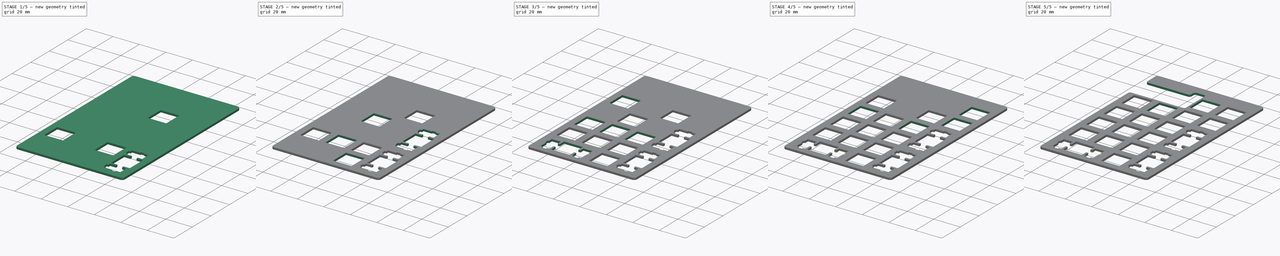
[diagram: build sequence overview — one tinted view per stage of 5, left to right]
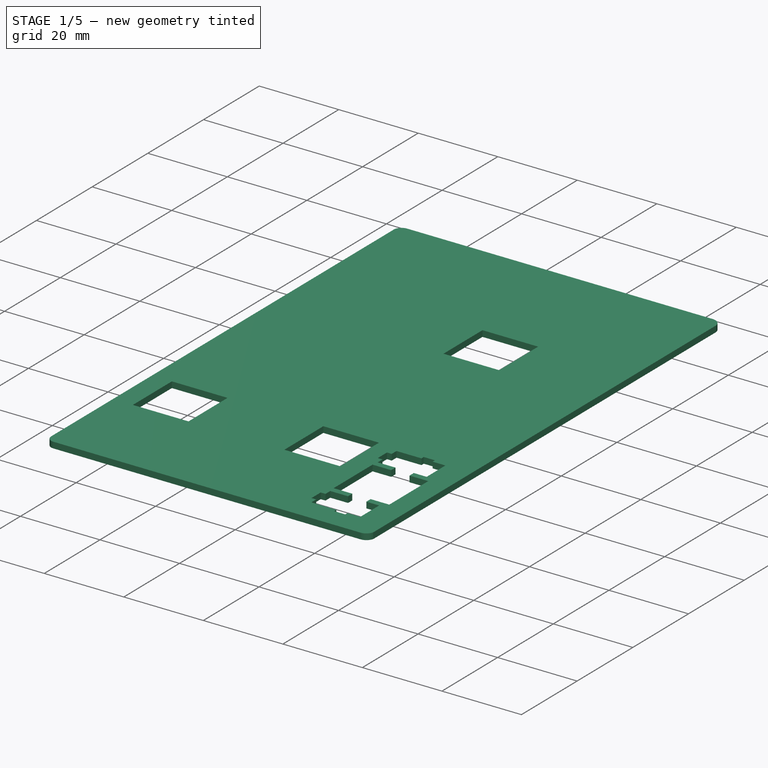
[diagram: stage 1 of 5 — iso view after this stage's code; geometry added in this stage tinted green]
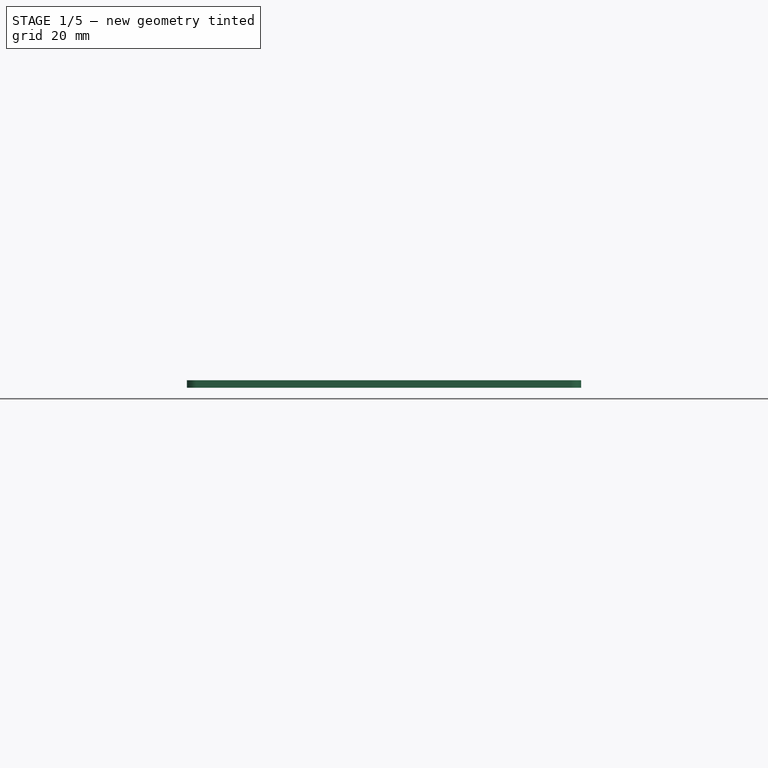
[diagram: stage 1 of 5 — front view after this stage's code; geometry added in this stage tinted green]
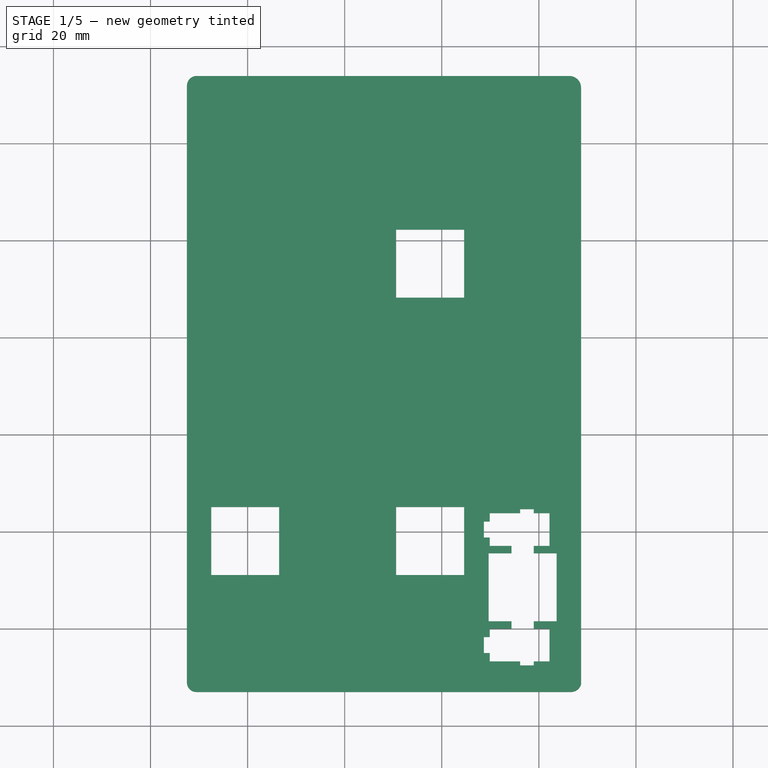
[diagram: stage 1 of 5 — top view after this stage's code; geometry added in this stage tinted green]
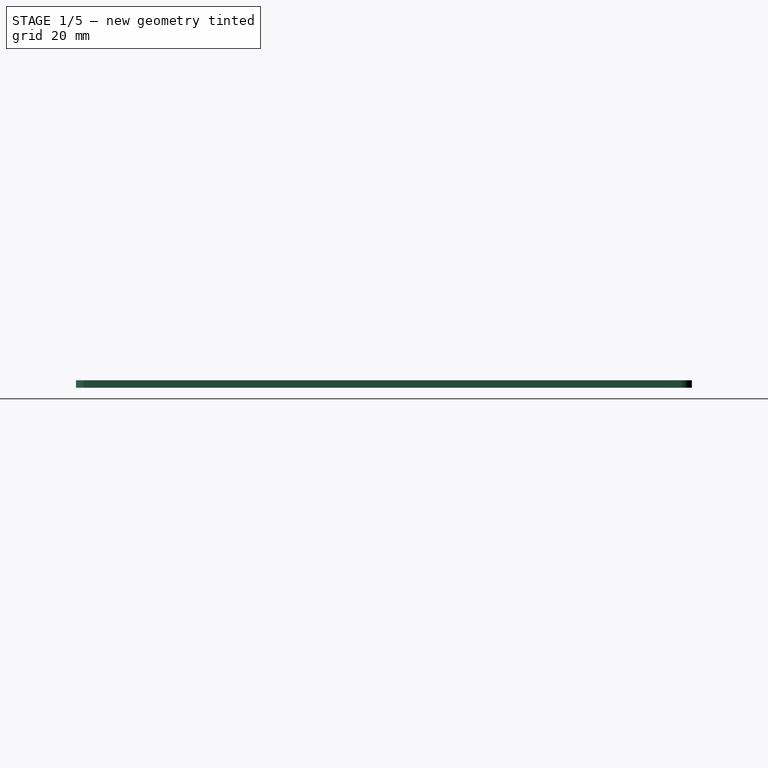
[diagram: stage 1 of 5 — right view after this stage's code; geometry added in this stage tinted green]
FCSTD DOCUMENT  (FreeCAD 0.18.4R)
Label: numPadPlate
License: All rights reserved
LicenseURL: http://en.wikipedia.org/wiki/All_rights_reserved
objects: Sketcher::SketchObject×25, Part::Feature×21, PartDesign::Pocket×21, App::Part×1, PartDesign::Pad×1, PartDesign::Fillet×1, PartDesign::Body×1
note: 92 computed .brp shape members not serialized (recipe doc carries the construction recipe); baked Part::Feature solids carry a one-line shape summary decoded from their .brp

FEATURE [Part::Feature] Wire008
  shape: bbox 14 x 14 x 2e-07 mm, 0 faces, 0 solids (baked)
FEATURE [Part::Feature] Wire003
  shape: bbox 14 x 14 x 2e-07 mm, 0 faces, 0 solids (baked)
FEATURE [Part::Feature] Wire
  shape: bbox 32.2 x 14.97 x 2e-07 mm, 0 faces, 0 solids (baked)
FEATURE [Part::Feature] Wire012
  shape: bbox 14 x 14 x 2e-07 mm, 0 faces, 0 solids (baked)
FEATURE [Part::Feature] Wire013
  shape: bbox 14 x 14 x 2e-07 mm, 0 faces, 0 solids (baked)
FEATURE [Part::Feature] Wire011
  shape: bbox 14 x 14 x 2e-07 mm, 0 faces, 0 solids (baked)
FEATURE [Part::Feature] Wire001
  shape: bbox 81.15 x 119.8 x 2e-07 mm, 0 faces, 0 solids (baked)
FEATURE [Part::Feature] Wire002
  shape: bbox 38.65 x 18.5 x 2e-07 mm, 0 faces, 0 solids (baked)
FEATURE [Part::Feature] Wire004
  shape: bbox 14 x 14 x 2e-07 mm, 0 faces, 0 solids (baked)
FEATURE [Part::Feature] Wire005
  Placement = pos=(19.05,19.05,0) rot=(0,0,1;0rad)
  shape: bbox 14 x 14 x 2e-07 mm, 0 faces, 0 solids (baked)
FEATURE [Part::Feature] Wire006
  shape: bbox 14 x 14 x 2e-07 mm, 0 faces, 0 solids (baked)
FEATURE [Part::Feature] Wire007
  shape: bbox 14 x 14 x 2e-07 mm, 0 faces, 0 solids (baked)
FEATURE [Part::Feature] Wire009
  shape: bbox 14 x 14 x 2e-07 mm, 0 faces, 0 solids (baked)
FEATURE [Part::Feature] Wire010
  shape: bbox 14.97 x 32.2 x 2e-07 mm, 0 faces, 0 solids (baked)
FEATURE [Part::Feature] Wire015
  shape: bbox 14 x 14 x 2e-07 mm, 0 faces, 0 solids (baked)
FEATURE [Part::Feature] Wire014
  shape: bbox 14 x 14 x 2e-07 mm, 0 faces, 0 solids (baked)
FEATURE [Part::Feature] Wire016
  shape: bbox 14 x 14 x 2e-07 mm, 0 faces, 0 solids (baked)
FEATURE [Part::Feature] Wire017
  shape: bbox 14.97 x 32.2 x 2e-07 mm, 0 faces, 0 solids (baked)
FEATURE [Part::Feature] Wire018
  shape: bbox 14 x 14 x 2e-07 mm, 0 faces, 0 solids (baked)
FEATURE [App::Part] Part
  Origin = -> Origin
FEATURE [Part::Feature] Wire020
  Placement = pos=(0,19.05,0) rot=(0,0,1;0rad)
  shape: bbox 14 x 14 x 2e-07 mm, 0 faces, 0 solids (baked)
FEATURE [Part::Feature] Wire019
  shape: bbox 14 x 14 x 2e-07 mm, 0 faces, 0 solids (baked)
FEATURE [Sketcher::SketchObject] Sketch001
  sketch-geometry (4):
    g0: LineSegment StartX=64.5996 StartY=26.0496 StartZ=0 EndX=64.5996 EndY=12.0502 EndZ=0
    g1: LineSegment StartX=64.5996 StartY=12.0502 StartZ=0 EndX=50.6003 EndY=12.0502 EndZ=0
    g2: LineSegment StartX=50.6003 StartY=12.0502 StartZ=0 EndX=50.6003 EndY=26.0496 EndZ=0
    g3: LineSegment StartX=50.6003 StartY=26.0496 StartZ=0 EndX=64.5996 EndY=26.0496 EndZ=0
  constraints (8):
    c: Vertical(g0)
    c: Coincident(g0,g1)
    c: Horizontal(g1)
    c: Coincident(g1,g2)
    c: Vertical(g2)
    c: Coincident(g2,g3)
    c: Horizontal(g3)
    c: Coincident(g3,g0)
FEATURE [Sketcher::SketchObject] Sketch002
  sketch-geometry (4):
    g0: LineSegment StartX=31.5503 StartY=83.201 StartZ=0 EndX=45.5496 EndY=83.201 EndZ=0
    g1: LineSegment StartX=45.5496 StartY=83.201 StartZ=0 EndX=45.5496 EndY=69.2003 EndZ=0
    g2: LineSegment StartX=45.5496 StartY=69.2003 StartZ=0 EndX=31.5503 EndY=69.2003 EndZ=0
    g3: LineSegment StartX=31.5503 StartY=69.2003 StartZ=0 EndX=31.5503 EndY=83.201 EndZ=0
  constraints (8):
    c: Horizontal(g0)
    c: Coincident(g0,g1)
    c: Vertical(g1)
    c: Coincident(g1,g2)
    c: Horizontal(g2)
    c: Coincident(g2,g3)
    c: Vertical(g3)
    c: Coincident(g3,g0)
FEATURE [Sketcher::SketchObject] Sketch003
  sketch-geometry (4):
    g0: LineSegment StartX=12.5002 StartY=102.25 StartZ=0 EndX=26.4998 EndY=102.25 EndZ=0
    g1: LineSegment StartX=26.4998 StartY=102.25 StartZ=0 EndX=26.4998 EndY=88.2503 EndZ=0
    g2: LineSegment StartX=26.4998 StartY=88.2503 StartZ=0 EndX=12.5002 EndY=88.2503 EndZ=0
    g3: LineSegment StartX=12.5002 StartY=88.2503 StartZ=0 EndX=12.5002 EndY=102.25 EndZ=0
  constraints (8):
    c: Horizontal(g0)
    c: Coincident(g0,g1)
    c: Vertical(g1)
    c: Coincident(g1,g2)
    c: Horizontal(g2)
    c: Coincident(g2,g3)
    c: Vertical(g3)
    c: Coincident(g3,g0)
FEATURE [Sketcher::SketchObject] Sketch004
  sketch-geometry (36):
    g0: LineSegment StartX=36.0247 StartY=26.0496 StartZ=0 EndX=22.0253 EndY=26.0496 EndZ=0
    g1: LineSegment StartX=22.0253 StartY=26.0496 StartZ=0 EndX=22.0253 EndY=21.3491 EndZ=0
    g2: LineSegment StartX=22.0253 StartY=21.3491 StartZ=0 EndX=20.4998 EndY=21.3491 EndZ=0
    g3: LineSegment StartX=20.4998 StartY=21.3491 StartZ=0 EndX=20.4998 EndY=24.5793 EndZ=0
    g4: LineSegment StartX=20.4998 StartY=24.5793 StartZ=0 EndX=13.7501 EndY=24.5793 EndZ=0
    g5: LineSegment StartX=13.7501 StartY=24.5793 StartZ=0 EndX=13.7501 EndY=21.3491 EndZ=0
    g6: LineSegment StartX=13.7501 StartY=21.3491 StartZ=0 EndX=12.9247 EndY=21.3491 EndZ=0
    g7: LineSegment StartX=12.9247 StartY=21.3491 StartZ=0 EndX=12.9247 EndY=18.5504 EndZ=0
    g8: LineSegment StartX=12.9247 StartY=18.5504 StartZ=0 EndX=13.7501 EndY=18.5504 EndZ=0
    g9: LineSegment StartX=13.7501 StartY=18.5504 StartZ=0 EndX=13.7501 EndY=12.2803 EndZ=0
    g10: LineSegment StartX=13.7501 StartY=12.2803 StartZ=0 EndX=15.4754 EndY=12.2803 EndZ=0
    g11: LineSegment StartX=15.4754 StartY=12.2803 StartZ=0 EndX=15.4754 EndY=11.08 EndZ=0
    g12: LineSegment StartX=15.4754 StartY=11.08 StartZ=0 EndX=18.7744 EndY=11.08 EndZ=0
    g13: LineSegment StartX=18.7744 StartY=11.08 StartZ=0 EndX=18.7744 EndY=12.2803 EndZ=0
    g14: LineSegment StartX=18.7744 StartY=12.2803 StartZ=0 EndX=20.4998 EndY=12.2803 EndZ=0
    g15: LineSegment StartX=20.4998 StartY=12.2803 StartZ=0 EndX=20.4998 EndY=16.7507 EndZ=0
    g16: LineSegment StartX=20.4998 StartY=16.7507 StartZ=0 EndX=22.0253 EndY=16.7507 EndZ=0
    g17: LineSegment StartX=22.0253 StartY=16.7507 StartZ=0 EndX=22.0253 EndY=12.0502 EndZ=0
    g18: LineSegment StartX=22.0253 StartY=12.0502 StartZ=0 EndX=36.0247 EndY=12.0502 EndZ=0
    g19: LineSegment StartX=36.0247 StartY=12.0502 StartZ=0 EndX=36.0247 EndY=16.7507 EndZ=0
    g20: LineSegment StartX=36.0247 StartY=16.7507 StartZ=0 EndX=37.5502 EndY=16.7507 EndZ=0
    g21: LineSegment StartX=37.5502 StartY=16.7507 StartZ=0 EndX=37.5502 EndY=12.2803 EndZ=0
    g22: LineSegment StartX=37.5502 StartY=12.2803 StartZ=0 EndX=39.2755 EndY=12.2803 EndZ=0
    g23: LineSegment StartX=39.2755 StartY=12.2803 StartZ=0 EndX=39.2755 EndY=11.08 EndZ=0
    g24: LineSegment StartX=39.2755 StartY=11.08 StartZ=0 EndX=42.5746 EndY=11.08 EndZ=0
    g25: LineSegment StartX=42.5746 StartY=11.08 StartZ=0 EndX=42.5746 EndY=12.2803 EndZ=0
    g26: LineSegment StartX=42.5746 StartY=12.2803 StartZ=0 EndX=44.2999 EndY=12.2803 EndZ=0
    g27: LineSegment StartX=44.2999 StartY=12.2803 StartZ=0 EndX=44.2999 EndY=18.5504 EndZ=0
    g28: LineSegment StartX=44.2999 StartY=18.5504 StartZ=0 EndX=45.1253 EndY=18.5504 EndZ=0
    g29: LineSegment StartX=45.1253 StartY=18.5504 StartZ=0 EndX=45.1253 EndY=21.3491 EndZ=0
    g30: LineSegment StartX=45.1253 StartY=21.3491 StartZ=0 EndX=44.2999 EndY=21.3491 EndZ=0
    g31: LineSegment StartX=44.2999 StartY=21.3491 StartZ=0 EndX=44.2999 EndY=24.5793 EndZ=0
    g32: LineSegment StartX=44.2999 StartY=24.5793 StartZ=0 EndX=37.5502 EndY=24.5793 EndZ=0
    g33: LineSegment StartX=37.5502 StartY=24.5793 StartZ=0 EndX=37.5502 EndY=21.3491 EndZ=0
    g34: LineSegment StartX=37.5502 StartY=21.3491 StartZ=0 EndX=36.0247 EndY=21.3491 EndZ=0
    g35: LineSegment StartX=36.0247 StartY=21.3491 StartZ=0 EndX=36.0247 EndY=26.0496 EndZ=0
  constraints (72):
    c: Horizontal(g0)
    c: Coincident(g0,g1)
    c: Vertical(g1)
    c: Coincident(g1,g2)
    c: Horizontal(g2)
    c: Coincident(g2,g3)
    c: Vertical(g3)
    c: Coincident(g3,g4)
    c: Horizontal(g4)
    c: Coincident(g4,g5)
    c: Vertical(g5)
    c: Coincident(g5,g6)
    c: Horizontal(g6)
    c: Coincident(g6,g7)
    c: Vertical(g7)
    c: Coincident(g7,g8)
    c: Horizontal(g8)
    c: Coincident(g8,g9)
    c: Vertical(g9)
    c: Coincident(g9,g10)
    c: Horizontal(g10)
    c: Coincident(g10,g11)
    c: Vertical(g11)
    c: Coincident(g11,g12)
    c: Horizontal(g12)
    c: Coincident(g12,g13)
    c: Vertical(g13)
    c: Coincident(g13,g14)
    c: Horizontal(g14)
    c: Coincident(g14,g15)
    c: Vertical(g15)
    c: Coincident(g15,g16)
    c: Horizontal(g16)
    c: Coincident(g16,g17)
    c: Vertical(g17)
    c: Coincident(g17,g18)
    c: Horizontal(g18)
    c: Coincident(g18,g19)
    c: Vertical(g19)
    c: Coincident(g19,g20)
    c: Horizontal(g20)
    c: Coincident(g20,g21)
    c: Vertical(g21)
    c: Coincident(g21,g22)
    c: Horizontal(g22)
    c: Coincident(g22,g23)
    c: Vertical(g23)
    c: Coincident(g23,g24)
    c: Horizontal(g24)
    c: Coincident(g24,g25)
    c: Vertical(g25)
    c: Coincident(g25,g26)
    c: Horizontal(g26)
    c: Coincident(g26,g27)
    c: Vertical(g27)
    c: Coincident(g27,g28)
    c: Horizontal(g28)
    c: Coincident(g28,g29)
    c: Vertical(g29)
    c: Coincident(g29,g30)
    c: Horizontal(g30)
    c: Coincident(g30,g31)
    c: Vertical(g31)
    c: Coincident(g31,g32)
    c: Horizontal(g32)
    c: Coincident(g32,g33)
    c: Vertical(g33)
    c: Coincident(g33,g34)
    c: Horizontal(g34)
    c: Coincident(g34,g35)
    c: Vertical(g35)
    c: Coincident(g35,g0)
FEATURE [Sketcher::SketchObject] Sketch005
  sketch-geometry (4):
    g0: LineSegment StartX=31.5503 StartY=64.151 StartZ=0 EndX=45.5496 EndY=64.151 EndZ=0
    g1: LineSegment StartX=45.5496 StartY=64.151 StartZ=0 EndX=45.5496 EndY=50.1504 EndZ=0
    g2: LineSegment StartX=45.5496 StartY=50.1504 StartZ=0 EndX=31.5503 EndY=50.1504 EndZ=0
    g3: LineSegment StartX=31.5503 StartY=50.1504 StartZ=0 EndX=31.5503 EndY=64.151 EndZ=0
  constraints (8):
    c: Horizontal(g0)
    c: Coincident(g0,g1)
    c: Vertical(g1)
    c: Coincident(g1,g2)
    c: Horizontal(g2)
    c: Coincident(g2,g3)
    c: Vertical(g3)
    c: Coincident(g3,g0)
FEATURE [Sketcher::SketchObject] Sketch006
  sketch-geometry (4):
    g0: LineSegment StartX=50.6003 StartY=64.151 StartZ=0 EndX=64.5996 EndY=64.151 EndZ=0
    g1: LineSegment StartX=64.5996 StartY=64.151 StartZ=0 EndX=64.5996 EndY=50.1504 EndZ=0
    g2: LineSegment StartX=64.5996 StartY=50.1504 StartZ=0 EndX=50.6003 EndY=50.1504 EndZ=0
    g3: LineSegment StartX=50.6003 StartY=50.1504 StartZ=0 EndX=50.6003 EndY=64.151 EndZ=0
  constraints (8):
    c: Horizontal(g0)
    c: Coincident(g0,g1)
    c: Vertical(g1)
    c: Coincident(g1,g2)
    c: Horizontal(g2)
    c: Coincident(g2,g3)
    c: Vertical(g3)
    c: Coincident(g3,g0)
FEATURE [Sketcher::SketchObject] Sketch007
  sketch-geometry (4):
    g0: LineSegment StartX=12.5002 StartY=64.151 StartZ=0 EndX=26.4998 EndY=64.151 EndZ=0
    g1: LineSegment StartX=26.4998 StartY=64.151 StartZ=0 EndX=26.4998 EndY=50.1504 EndZ=0
    g2: LineSegment StartX=26.4998 StartY=50.1504 StartZ=0 EndX=12.5002 EndY=50.1504 EndZ=0
    g3: LineSegment StartX=12.5002 StartY=50.1504 StartZ=0 EndX=12.5002 EndY=64.151 EndZ=0
  constraints (8):
    c: Horizontal(g0)
    c: Coincident(g0,g1)
    c: Vertical(g1)
    c: Coincident(g1,g2)
    c: Horizontal(g2)
    c: Coincident(g2,g3)
    c: Vertical(g3)
    c: Coincident(g3,g0)
FEATURE [Sketcher::SketchObject] Sketch008  label="outer"
  sketch-geometry (8):
    g0: ArcOfCircle CenterX=9.43113 CenterY=8.93113 CenterZ=0 NormalX=0 NormalY=0 NormalZ=1 AngleXU=0 Radius=1.93236 StartAngle=3.10595 EndAngle=4.74803
    g1: LineSegment StartX=9.5 StartY=7 StartZ=0 EndX=86.65 EndY=7 EndZ=0
    g2: ArcOfCircle CenterX=86.65 CenterY=9.10215 CenterZ=0 NormalX=0 NormalY=0 NormalZ=1 AngleXU=0 Radius=2.10215 StartAngle=4.71239 EndAngle=6.04596
    g3: LineSegment StartX=88.6933 StartY=8.60814 StartZ=0 EndX=88.6933 EndY=131.518 EndZ=0
    g4: ArcOfCircle CenterX=86.3014 CenterY=131.518 CenterZ=0 NormalX=0 NormalY=0 NormalZ=1 AngleXU=0 Radius=2.39186 StartAngle=7.6e-15 EndAngle=1.5708
    g5: LineSegment StartX=86.3014 StartY=133.91 StartZ=0 EndX=9.73202 EndY=133.91 EndZ=0
    g6: ArcOfCircle CenterX=9.51206 CenterY=131.91 CenterZ=0 NormalX=0 NormalY=0 NormalZ=1 AngleXU=0 Radius=2.01206 StartAngle=1.46125 EndAngle=3.14159
    g7: LineSegment StartX=7.5 StartY=131.91 StartZ=0 EndX=7.5 EndY=9 EndZ=0
  constraints (24):
    c: Coincident(g0,g1)
    c: Horizontal(g1)
    c: Coincident(g1,g2)
    c: Coincident(g2,g3)
    c: Vertical(g3)
    c: Coincident(g3,g4)
    c: Coincident(g4,g5)
    c: Horizontal(g5)
    c: Coincident(g5,g6)
    c: Coincident(g6,g7)
    c: Vertical(g7)
    c: Coincident(g7,g0)
    c: DistanceX(g0) = 9.5
    c: DistanceY(g0) = 7
    c: DistanceX(g0) = 7.5
    c: DistanceY(g0) = 9
    c: Equal(g7,g3)
    c: DistanceY(g6,g6) = 0
    c: Distance(g7) = 122.91  'totalHeight -4mm'
    c: Distance(g1) = 77.15
    c: DistanceX(g1,g2) = 0
    c: DistanceY(g6,g5) = 2
    c: DistanceX(g4,g4) = 0
    c: DistanceY(g4,g3) = 0
FEATURE [Sketcher::SketchObject] Sketch009  label="arduino"
  sketch-geometry (5):
    g0: GeomPoint X=5.74275 Y=122.036 Z=0
    g1: LineSegment StartX=5.73795 StartY=122.037 StartZ=0 EndX=49.1508 EndY=122.037 EndZ=0
    g2: LineSegment StartX=49.1508 StartY=122.037 StartZ=0 EndX=49.1508 EndY=104.25 EndZ=0
    g3: LineSegment StartX=49.1508 StartY=104.25 StartZ=0 EndX=5.73795 EndY=104.25 EndZ=0
    g4: LineSegment StartX=5.73795 StartY=104.25 StartZ=0 EndX=5.73795 EndY=122.037 EndZ=0
  constraints (8):
    c: Coincident(g1,g2)
    c: Coincident(g2,g3)
    c: Coincident(g3,g4)
    c: Coincident(g4,g1)
    c: Horizontal(g1)
    c: Horizontal(g3)
    c: Vertical(g2)
    c: Vertical(g4)
FEATURE [Sketcher::SketchObject] Sketch010
  sketch-geometry (4):
    g0: LineSegment StartX=31.5503 StartY=102.25 StartZ=0 EndX=45.5496 EndY=102.25 EndZ=0
    g1: LineSegment StartX=45.5496 StartY=102.25 StartZ=0 EndX=45.5496 EndY=88.2503 EndZ=0
    g2: LineSegment StartX=45.5496 StartY=88.2503 StartZ=0 EndX=31.5503 EndY=88.2503 EndZ=0
    g3: LineSegment StartX=31.5503 StartY=88.2503 StartZ=0 EndX=31.5503 EndY=102.25 EndZ=0
  constraints (8):
    c: Horizontal(g0)
    c: Coincident(g0,g1)
    c: Vertical(g1)
    c: Coincident(g1,g2)
    c: Horizontal(g2)
    c: Coincident(g2,g3)
    c: Vertical(g3)
    c: Coincident(g3,g0)
FEATURE [Sketcher::SketchObject] Sketch011
  sketch-geometry (4):
    g0: LineSegment StartX=83.6496 StartY=121.3 StartZ=0 EndX=83.6496 EndY=107.3 EndZ=0
    g1: LineSegment StartX=83.6496 StartY=107.3 StartZ=0 EndX=69.6503 EndY=107.3 EndZ=0
    g2: LineSegment StartX=69.6503 StartY=107.3 StartZ=0 EndX=69.6503 EndY=121.3 EndZ=0
    g3: LineSegment StartX=69.6503 StartY=121.3 StartZ=0 EndX=83.6496 EndY=121.3 EndZ=0
  constraints (8):
    c: Vertical(g0)
    c: Coincident(g0,g1)
    c: Horizontal(g1)
    c: Coincident(g1,g2)
    c: Vertical(g2)
    c: Coincident(g2,g3)
    c: Horizontal(g3)
    c: Coincident(g3,g0)
FEATURE [Sketcher::SketchObject] Sketch012
  sketch-geometry (4):
    g0: LineSegment StartX=69.6503 StartY=102.25 StartZ=0 EndX=83.6496 EndY=102.25 EndZ=0
    g1: LineSegment StartX=83.6496 StartY=102.25 StartZ=0 EndX=83.6496 EndY=88.2503 EndZ=0
    g2: LineSegment StartX=83.6496 StartY=88.2503 StartZ=0 EndX=69.6503 EndY=88.2503 EndZ=0
    g3: LineSegment StartX=69.6503 StartY=88.2503 StartZ=0 EndX=69.6503 EndY=102.25 EndZ=0
  constraints (8):
    c: Horizontal(g0)
    c: Coincident(g0,g1)
    c: Vertical(g1)
    c: Coincident(g1,g2)
    c: Horizontal(g2)
    c: Coincident(g2,g3)
    c: Vertical(g3)
    c: Coincident(g3,g0)
FEATURE [Sketcher::SketchObject] Sketch013
  sketch-geometry (4):
    g0: LineSegment StartX=12.5002 StartY=83.201 StartZ=0 EndX=26.4998 EndY=83.201 EndZ=0
    g1: LineSegment StartX=26.4998 StartY=83.201 StartZ=0 EndX=26.4998 EndY=69.2003 EndZ=0
    g2: LineSegment StartX=26.4998 StartY=69.2003 StartZ=0 EndX=12.5002 EndY=69.2003 EndZ=0
    g3: LineSegment StartX=12.5002 StartY=69.2003 StartZ=0 EndX=12.5002 EndY=83.201 EndZ=0
  constraints (8):
    c: Horizontal(g0)
    c: Coincident(g0,g1)
    c: Vertical(g1)
    c: Coincident(g1,g2)
    c: Horizontal(g2)
    c: Coincident(g2,g3)
    c: Vertical(g3)
    c: Coincident(g3,g0)
FEATURE [Sketcher::SketchObject] Sketch014
  sketch-geometry (4):
    g0: LineSegment StartX=50.6003 StartY=83.201 StartZ=0 EndX=64.5996 EndY=83.201 EndZ=0
    g1: LineSegment StartX=64.5996 StartY=83.201 StartZ=0 EndX=64.5996 EndY=69.2003 EndZ=0
    g2: LineSegment StartX=64.5996 StartY=69.2003 StartZ=0 EndX=50.6003 EndY=69.2003 EndZ=0
    g3: LineSegment StartX=50.6003 StartY=69.2003 StartZ=0 EndX=50.6003 EndY=83.201 EndZ=0
  constraints (8):
    c: Horizontal(g0)
    c: Coincident(g0,g1)
    c: Vertical(g1)
    c: Coincident(g1,g2)
    c: Horizontal(g2)
    c: Coincident(g2,g3)
    c: Vertical(g3)
    c: Coincident(g3,g0)
FEATURE [Sketcher::SketchObject] Sketch015
  sketch-geometry (36):
    g0: LineSegment StartX=76.1506 StartY=82.7752 StartZ=0 EndX=76.1506 EndY=81.9511 EndZ=0
    g1: LineSegment StartX=76.1506 StartY=81.9511 StartZ=0 EndX=69.8803 EndY=81.9511 EndZ=0
    g2: LineSegment StartX=69.8803 StartY=81.9511 StartZ=0 EndX=69.8803 EndY=80.2261 EndZ=0
    g3: LineSegment StartX=69.8803 StartY=80.2261 StartZ=0 EndX=68.6802 EndY=80.2261 EndZ=0
    g4: LineSegment StartX=68.6802 StartY=80.2261 StartZ=0 EndX=68.6802 EndY=76.9254 EndZ=0
    g5: LineSegment StartX=68.6802 StartY=76.9254 StartZ=0 EndX=69.8803 EndY=76.9254 EndZ=0
    g6: LineSegment StartX=69.8803 StartY=76.9254 StartZ=0 EndX=69.8803 EndY=75.2 EndZ=0
    g7: LineSegment StartX=69.8803 StartY=75.2 StartZ=0 EndX=74.3507 EndY=75.2 EndZ=0
    g8: LineSegment StartX=74.3507 StartY=75.2 StartZ=0 EndX=74.3507 EndY=73.676 EndZ=0
    g9: LineSegment StartX=74.3507 StartY=73.676 StartZ=0 EndX=69.6503 EndY=73.676 EndZ=0
    g10: LineSegment StartX=69.6503 StartY=73.676 StartZ=0 EndX=69.6503 EndY=59.6753 EndZ=0
    g11: LineSegment StartX=69.6503 StartY=59.6753 StartZ=0 EndX=74.3507 EndY=59.6753 EndZ=0
    g12: LineSegment StartX=74.3507 StartY=59.6753 StartZ=0 EndX=74.3507 EndY=58.1509 EndZ=0
    g13: LineSegment StartX=74.3507 StartY=58.1509 StartZ=0 EndX=69.8803 EndY=58.1509 EndZ=0
    g14: LineSegment StartX=69.8803 StartY=58.1509 StartZ=0 EndX=69.8803 EndY=56.4258 EndZ=0
    g15: LineSegment StartX=69.8803 StartY=56.4258 StartZ=0 EndX=68.6802 EndY=56.4258 EndZ=0
    g16: LineSegment StartX=68.6802 StartY=56.4258 StartZ=0 EndX=68.6802 EndY=53.1252 EndZ=0
    g17: LineSegment StartX=68.6802 StartY=53.1252 StartZ=0 EndX=69.8803 EndY=53.1252 EndZ=0
    g18: LineSegment StartX=69.8803 StartY=53.1252 StartZ=0 EndX=69.8803 EndY=51.4016 EndZ=0
    g19: LineSegment StartX=69.8803 StartY=51.4016 StartZ=0 EndX=76.1506 EndY=51.4016 EndZ=0
    g20: LineSegment StartX=76.1506 StartY=51.4016 StartZ=0 EndX=76.1506 EndY=50.5761 EndZ=0
    g21: LineSegment StartX=76.1506 StartY=50.5761 StartZ=0 EndX=78.9506 EndY=50.5761 EndZ=0
    g22: LineSegment StartX=78.9506 StartY=50.5761 StartZ=0 EndX=78.9506 EndY=51.4016 EndZ=0
    g23: LineSegment StartX=78.9506 StartY=51.4016 StartZ=0 EndX=82.1806 EndY=51.4016 EndZ=0
    g24: LineSegment StartX=82.1806 StartY=51.4016 StartZ=0 EndX=82.1806 EndY=58.1509 EndZ=0
    g25: LineSegment StartX=82.1806 StartY=58.1509 StartZ=0 EndX=78.9506 EndY=58.1509 EndZ=0
    g26: LineSegment StartX=78.9506 StartY=58.1509 StartZ=0 EndX=78.9506 EndY=59.6753 EndZ=0
    g27: LineSegment StartX=78.9506 StartY=59.6753 StartZ=0 EndX=83.6496 EndY=59.6753 EndZ=0
    g28: LineSegment StartX=83.6496 StartY=59.6753 StartZ=0 EndX=83.6496 EndY=73.676 EndZ=0
    g29: LineSegment StartX=83.6496 StartY=73.676 StartZ=0 EndX=78.9506 EndY=73.676 EndZ=0
    g30: LineSegment StartX=78.9506 StartY=73.676 StartZ=0 EndX=78.9506 EndY=75.2 EndZ=0
    g31: LineSegment StartX=78.9506 StartY=75.2 StartZ=0 EndX=82.1806 EndY=75.2 EndZ=0
    g32: LineSegment StartX=82.1806 StartY=75.2 StartZ=0 EndX=82.1806 EndY=81.9511 EndZ=0
    g33: LineSegment StartX=82.1806 StartY=81.9511 StartZ=0 EndX=78.9506 EndY=81.9511 EndZ=0
    g34: LineSegment StartX=78.9506 StartY=81.9511 StartZ=0 EndX=78.9506 EndY=82.7752 EndZ=0
    g35: LineSegment StartX=78.9506 StartY=82.7752 StartZ=0 EndX=76.1506 EndY=82.7752 EndZ=0
  constraints (72):
    c: Vertical(g0)
    c: Coincident(g0,g1)
    c: Horizontal(g1)
    c: Coincident(g1,g2)
    c: Vertical(g2)
    c: Coincident(g2,g3)
    c: Horizontal(g3)
    c: Coincident(g3,g4)
    c: Vertical(g4)
    c: Coincident(g4,g5)
    c: Horizontal(g5)
    c: Coincident(g5,g6)
    c: Vertical(g6)
    c: Coincident(g6,g7)
    c: Horizontal(g7)
    c: Coincident(g7,g8)
    c: Vertical(g8)
    c: Coincident(g8,g9)
    c: Horizontal(g9)
    c: Coincident(g9,g10)
    c: Vertical(g10)
    c: Coincident(g10,g11)
    c: Horizontal(g11)
    c: Coincident(g11,g12)
    c: Vertical(g12)
    c: Coincident(g12,g13)
    c: Horizontal(g13)
    c: Coincident(g13,g14)
    c: Vertical(g14)
    c: Coincident(g14,g15)
    c: Horizontal(g15)
    c: Coincident(g15,g16)
    c: Vertical(g16)
    c: Coincident(g16,g17)
    c: Horizontal(g17)
    c: Coincident(g17,g18)
    c: Vertical(g18)
    c: Coincident(g18,g19)
    c: Horizontal(g19)
    c: Coincident(g19,g20)
    c: Vertical(g20)
    c: Coincident(g20,g21)
    c: Horizontal(g21)
    c: Coincident(g21,g22)
    c: Vertical(g22)
    c: Coincident(g22,g23)
    c: Horizontal(g23)
    c: Coincident(g23,g24)
    c: Vertical(g24)
    c: Coincident(g24,g25)
    c: Horizontal(g25)
    c: Coincident(g25,g26)
    c: Vertical(g26)
    c: Coincident(g26,g27)
    c: Horizontal(g27)
    c: Coincident(g27,g28)
    c: Vertical(g28)
    c: Coincident(g28,g29)
    c: Horizontal(g29)
    c: Coincident(g29,g30)
    c: Vertical(g30)
    c: Coincident(g30,g31)
    c: Horizontal(g31)
    c: Coincident(g31,g32)
    c: Vertical(g32)
    c: Coincident(g32,g33)
    c: Horizontal(g33)
    c: Coincident(g33,g34)
    c: Vertical(g34)
    c: Coincident(g34,g35)
    c: Horizontal(g35)
    c: Coincident(g35,g0)
FEATURE [Sketcher::SketchObject] Sketch016
  sketch-geometry (4):
    g0: LineSegment StartX=31.5503 StartY=45.0995 StartZ=0 EndX=45.5496 EndY=45.0995 EndZ=0
    g1: LineSegment StartX=45.5496 StartY=45.0995 StartZ=0 EndX=45.5496 EndY=31.1001 EndZ=0
    g2: LineSegment StartX=45.5496 StartY=31.1001 StartZ=0 EndX=31.5503 EndY=31.1001 EndZ=0
    g3: LineSegment StartX=31.5503 StartY=31.1001 StartZ=0 EndX=31.5503 EndY=45.0995 EndZ=0
  constraints (8):
    c: Horizontal(g0)
    c: Coincident(g0,g1)
    c: Vertical(g1)
    c: Coincident(g1,g2)
    c: Horizontal(g2)
    c: Coincident(g2,g3)
    c: Vertical(g3)
    c: Coincident(g3,g0)
FEATURE [Sketcher::SketchObject] Sketch017
  sketch-geometry (4):
    g0: LineSegment StartX=12.5002 StartY=45.0995 StartZ=0 EndX=26.4998 EndY=45.0995 EndZ=0
    g1: LineSegment StartX=26.4998 StartY=45.0995 StartZ=0 EndX=26.4998 EndY=31.1001 EndZ=0
    g2: LineSegment StartX=26.4998 StartY=31.1001 StartZ=0 EndX=12.5002 EndY=31.1001 EndZ=0
    g3: LineSegment StartX=12.5002 StartY=31.1001 StartZ=0 EndX=12.5002 EndY=45.0995 EndZ=0
  constraints (8):
    c: Horizontal(g0)
    c: Coincident(g0,g1)
    c: Vertical(g1)
    c: Coincident(g1,g2)
    c: Horizontal(g2)
    c: Coincident(g2,g3)
    c: Vertical(g3)
    c: Coincident(g3,g0)
FEATURE [Sketcher::SketchObject] Sketch018
  sketch-geometry (4):
    g0: LineSegment StartX=50.6003 StartY=45.0995 StartZ=0 EndX=64.5996 EndY=45.0995 EndZ=0
    g1: LineSegment StartX=64.5996 StartY=45.0995 StartZ=0 EndX=64.5996 EndY=31.1001 EndZ=0
    g2: LineSegment StartX=64.5996 StartY=31.1001 StartZ=0 EndX=50.6003 EndY=31.1001 EndZ=0
    g3: LineSegment StartX=50.6003 StartY=31.1001 StartZ=0 EndX=50.6003 EndY=45.0995 EndZ=0
  constraints (8):
    c: Horizontal(g0)
    c: Coincident(g0,g1)
    c: Vertical(g1)
    c: Coincident(g1,g2)
    c: Horizontal(g2)
    c: Coincident(g2,g3)
    c: Vertical(g3)
    c: Coincident(g3,g0)
FEATURE [Sketcher::SketchObject] Sketch019
  sketch-geometry (36):
    g0: LineSegment StartX=76.1506 StartY=43.8499 StartZ=0 EndX=69.8803 EndY=43.8499 EndZ=0
    g1: LineSegment StartX=69.8803 StartY=43.8499 StartZ=0 EndX=69.8803 EndY=42.1245 EndZ=0
    g2: LineSegment StartX=69.8803 StartY=42.1245 StartZ=0 EndX=68.6802 EndY=42.1245 EndZ=0
    g3: LineSegment StartX=68.6802 StartY=42.1245 StartZ=0 EndX=68.6802 EndY=38.8254 EndZ=0
    g4: LineSegment StartX=68.6802 StartY=38.8254 StartZ=0 EndX=69.8803 EndY=38.8254 EndZ=0
    g5: LineSegment StartX=69.8803 StartY=38.8254 StartZ=0 EndX=69.8803 EndY=37.1001 EndZ=0
    g6: LineSegment StartX=69.8803 StartY=37.1001 StartZ=0 EndX=74.3507 EndY=37.1001 EndZ=0
    g7: LineSegment StartX=74.3507 StartY=37.1001 StartZ=0 EndX=74.3507 EndY=35.5746 EndZ=0
    g8: LineSegment StartX=74.3507 StartY=35.5746 StartZ=0 EndX=69.6503 EndY=35.5746 EndZ=0
    g9: LineSegment StartX=69.6503 StartY=35.5746 StartZ=0 EndX=69.6503 EndY=21.5751 EndZ=0
    g10: LineSegment StartX=69.6503 StartY=21.5751 StartZ=0 EndX=74.3507 EndY=21.5751 EndZ=0
    g11: LineSegment StartX=74.3507 StartY=21.5751 StartZ=0 EndX=74.3507 EndY=20.0496 EndZ=0
    g12: LineSegment StartX=74.3507 StartY=20.0496 StartZ=0 EndX=69.8803 EndY=20.0496 EndZ=0
    g13: LineSegment StartX=69.8803 StartY=20.0496 StartZ=0 EndX=69.8803 EndY=18.3244 EndZ=0
    g14: LineSegment StartX=69.8803 StartY=18.3244 StartZ=0 EndX=68.6802 EndY=18.3244 EndZ=0
    g15: LineSegment StartX=68.6802 StartY=18.3244 StartZ=0 EndX=68.6802 EndY=15.0254 EndZ=0
    g16: LineSegment StartX=68.6802 StartY=15.0254 StartZ=0 EndX=69.8803 EndY=15.0254 EndZ=0
    g17: LineSegment StartX=69.8803 StartY=15.0254 StartZ=0 EndX=69.8803 EndY=13.3001 EndZ=0
    g18: LineSegment StartX=69.8803 StartY=13.3001 StartZ=0 EndX=76.1506 EndY=13.3001 EndZ=0
    g19: LineSegment StartX=76.1506 StartY=13.3001 StartZ=0 EndX=76.1506 EndY=12.4746 EndZ=0
    g20: LineSegment StartX=76.1506 StartY=12.4746 StartZ=0 EndX=78.9506 EndY=12.4746 EndZ=0
    g21: LineSegment StartX=78.9506 StartY=12.4746 StartZ=0 EndX=78.9506 EndY=13.3001 EndZ=0
    g22: LineSegment StartX=78.9506 StartY=13.3001 StartZ=0 EndX=82.1806 EndY=13.3001 EndZ=0
    g23: LineSegment StartX=82.1806 StartY=13.3001 StartZ=0 EndX=82.1806 EndY=20.0496 EndZ=0
    g24: LineSegment StartX=82.1806 StartY=20.0496 StartZ=0 EndX=78.9506 EndY=20.0496 EndZ=0
    g25: LineSegment StartX=78.9506 StartY=20.0496 StartZ=0 EndX=78.9506 EndY=21.5751 EndZ=0
    g26: LineSegment StartX=78.9506 StartY=21.5751 StartZ=0 EndX=83.6496 EndY=21.5751 EndZ=0
    g27: LineSegment StartX=83.6496 StartY=21.5751 StartZ=0 EndX=83.6496 EndY=35.5746 EndZ=0
    g28: LineSegment StartX=83.6496 StartY=35.5746 StartZ=0 EndX=78.9506 EndY=35.5746 EndZ=0
    g29: LineSegment StartX=78.9506 StartY=35.5746 StartZ=0 EndX=78.9506 EndY=37.1001 EndZ=0
    g30: LineSegment StartX=78.9506 StartY=37.1001 StartZ=0 EndX=82.1806 EndY=37.1001 EndZ=0
    g31: LineSegment StartX=82.1806 StartY=37.1001 StartZ=0 EndX=82.1806 EndY=43.8499 EndZ=0
    g32: LineSegment StartX=82.1806 StartY=43.8499 StartZ=0 EndX=78.9506 EndY=43.8499 EndZ=0
    g33: LineSegment StartX=78.9506 StartY=43.8499 StartZ=0 EndX=78.9506 EndY=44.6752 EndZ=0
    g34: LineSegment StartX=78.9506 StartY=44.6752 StartZ=0 EndX=76.1506 EndY=44.6752 EndZ=0
    g35: LineSegment StartX=76.1506 StartY=44.6752 StartZ=0 EndX=76.1506 EndY=43.8499 EndZ=0
  constraints (72):
    c: Horizontal(g0)
    c: Coincident(g0,g1)
    c: Vertical(g1)
    c: Coincident(g1,g2)
    c: Horizontal(g2)
    c: Coincident(g2,g3)
    c: Vertical(g3)
    c: Coincident(g3,g4)
    c: Horizontal(g4)
    c: Coincident(g4,g5)
    c: Vertical(g5)
    c: Coincident(g5,g6)
    c: Horizontal(g6)
    c: Coincident(g6,g7)
    c: Vertical(g7)
    c: Coincident(g7,g8)
    c: Horizontal(g8)
    c: Coincident(g8,g9)
    c: Vertical(g9)
    c: Coincident(g9,g10)
    c: Horizontal(g10)
    c: Coincident(g10,g11)
    c: Vertical(g11)
    c: Coincident(g11,g12)
    c: Horizontal(g12)
    c: Coincident(g12,g13)
    c: Vertical(g13)
    c: Coincident(g13,g14)
    c: Horizontal(g14)
    c: Coincident(g14,g15)
    c: Vertical(g15)
    c: Coincident(g15,g16)
    c: Horizontal(g16)
    c: Coincident(g16,g17)
    c: Vertical(g17)
    c: Coincident(g17,g18)
    c: Horizontal(g18)
    c: Coincident(g18,g19)
    c: Vertical(g19)
    c: Coincident(g19,g20)
    c: Horizontal(g20)
    c: Coincident(g20,g21)
    c: Vertical(g21)
    c: Coincident(g21,g22)
    c: Horizontal(g22)
    c: Coincident(g22,g23)
    c: Vertical(g23)
    c: Coincident(g23,g24)
    c: Horizontal(g24)
    c: Coincident(g24,g25)
    c: Vertical(g25)
    c: Coincident(g25,g26)
    c: Horizontal(g26)
    c: Coincident(g26,g27)
    c: Vertical(g27)
    c: Coincident(g27,g28)
    c: Horizontal(g28)
    c: Coincident(g28,g29)
    c: Vertical(g29)
    c: Coincident(g29,g30)
    c: Horizontal(g30)
    c: Coincident(g30,g31)
    c: Vertical(g31)
    c: Coincident(g31,g32)
    c: Horizontal(g32)
    c: Coincident(g32,g33)
    c: Vertical(g33)
    c: Coincident(g33,g34)
    c: Horizontal(g34)
    c: Coincident(g34,g35)
    c: Vertical(g35)
    c: Coincident(g35,g0)
FEATURE [Sketcher::SketchObject] Sketch020
  sketch-geometry (4):
    g0: LineSegment StartX=64.5996 StartY=102.25 StartZ=0 EndX=64.5996 EndY=88.2503 EndZ=0
    g1: LineSegment StartX=64.5996 StartY=88.2503 StartZ=0 EndX=50.6003 EndY=88.2503 EndZ=0
    g2: LineSegment StartX=50.6003 StartY=88.2503 StartZ=0 EndX=50.6003 EndY=102.25 EndZ=0
    g3: LineSegment StartX=50.6003 StartY=102.25 StartZ=0 EndX=64.5996 EndY=102.25 EndZ=0
  constraints (8):
    c: Vertical(g0)
    c: Coincident(g0,g1)
    c: Horizontal(g1)
    c: Coincident(g1,g2)
    c: Vertical(g2)
    c: Coincident(g2,g3)
    c: Horizontal(g3)
    c: Coincident(g3,g0)
FEATURE [PartDesign::Pad] Pad
  Length = 1.524
  Length2 = 100
  Profile = -> Sketch008
  Type = 0
FEATURE [PartDesign::Pocket] Pocket
  BaseFeature = -> Pad
  Length = 1.524
  Length2 = 100
  Profile = -> Sketch019
  Reversed = true
  Type = 0
FEATURE [PartDesign::Pocket] Pocket001
  BaseFeature = -> Pocket
  Length = 1.524
  Length2 = 100
  Profile = -> Sketch020
  Reversed = true
  Type = 0
FEATURE [PartDesign::Pocket] Pocket002
  BaseFeature = -> Pocket001
  Length = 5
  Length2 = 100
  Profile = -> Sketch018
  Reversed = true
  Type = 0
FEATURE [PartDesign::Pocket] Pocket003
  BaseFeature = -> Pocket002
  Length = 5
  Length2 = 100
  Profile = -> Sketch017
  Reversed = true
  Type = 0
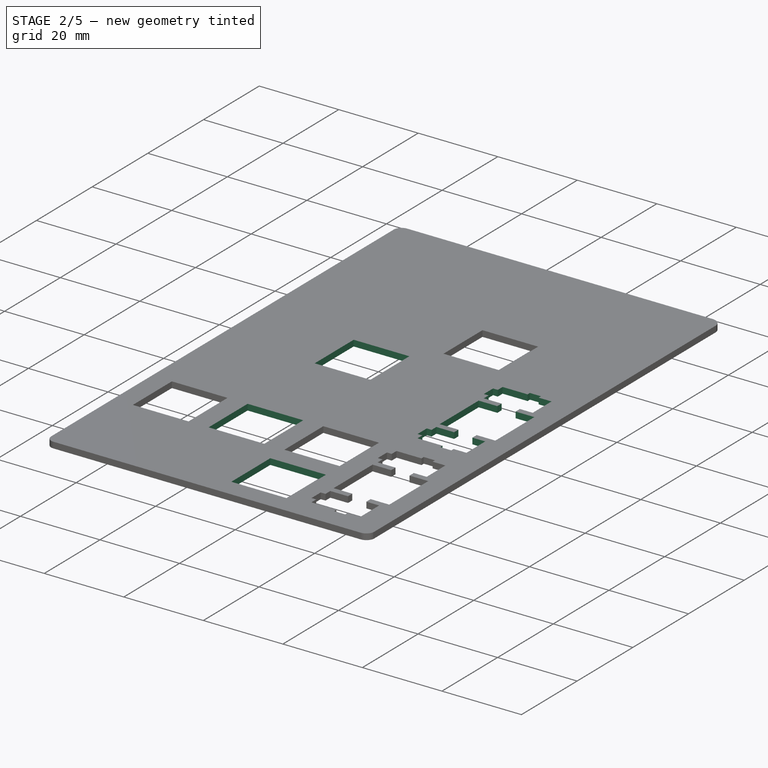
[diagram: stage 2 of 5 — iso view after this stage's code; geometry added in this stage tinted green]
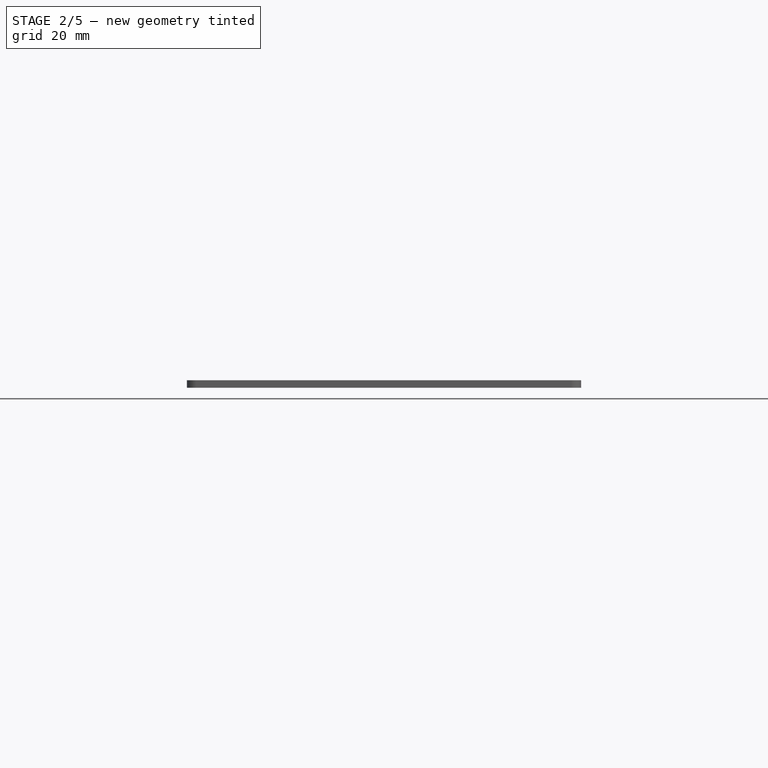
[diagram: stage 2 of 5 — front view after this stage's code; geometry added in this stage tinted green]
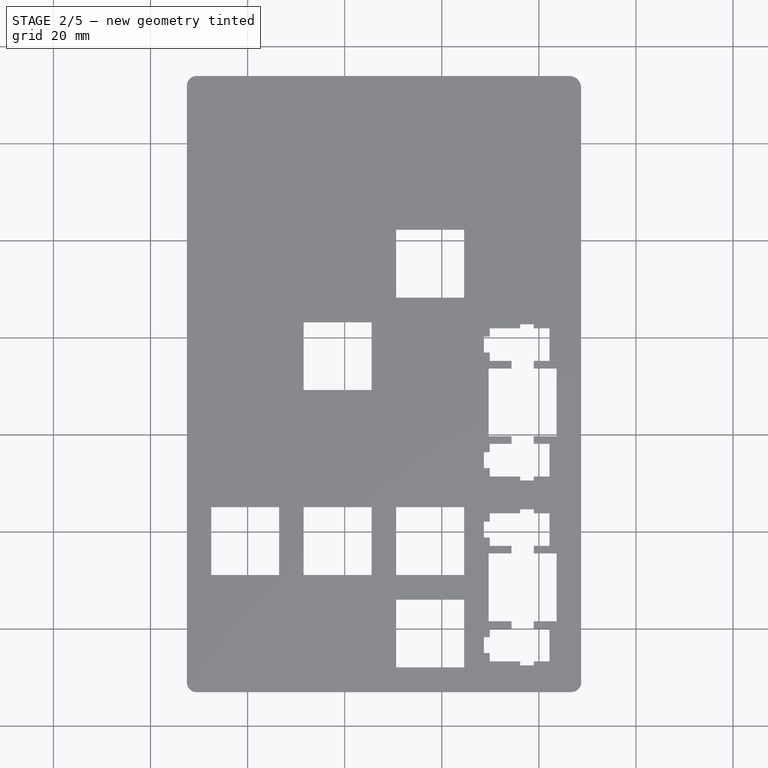
[diagram: stage 2 of 5 — top view after this stage's code; geometry added in this stage tinted green]
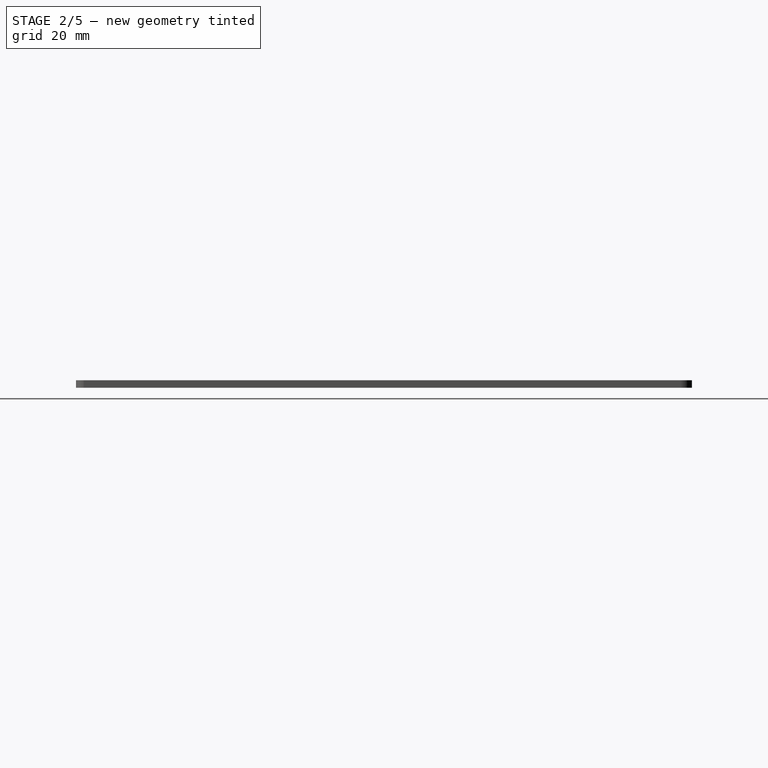
[diagram: stage 2 of 5 — right view after this stage's code; geometry added in this stage tinted green]
FEATURE [PartDesign::Pocket] Pocket004
  BaseFeature = -> Pocket003
  Length = 5
  Length2 = 100
  Profile = -> Sketch016
  Reversed = true
  Type = 0
FEATURE [PartDesign::Pocket] Pocket005
  BaseFeature = -> Pocket004
  Length = 5
  Length2 = 100
  Profile = -> Sketch015
  Reversed = true
  Type = 0
FEATURE [PartDesign::Pocket] Pocket006
  BaseFeature = -> Pocket005
  Length = 5
  Length2 = 100
  Profile = -> Sketch001
  Reversed = true
  Type = 0
FEATURE [PartDesign::Pocket] Pocket007
  BaseFeature = -> Pocket006
  Length = 5
  Length2 = 100
  Profile = -> Sketch002
  Reversed = true
  Type = 0
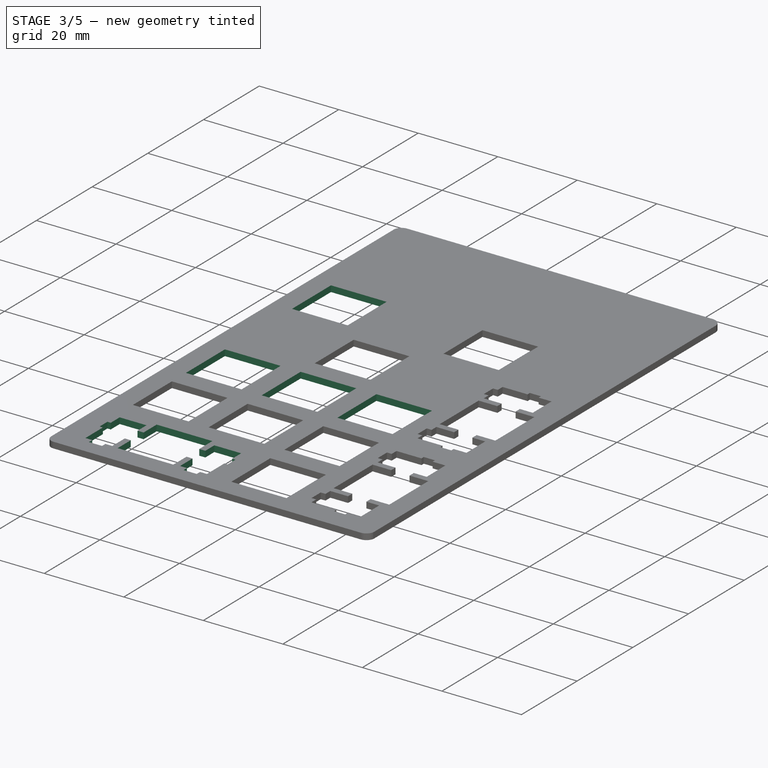
[diagram: stage 3 of 5 — iso view after this stage's code; geometry added in this stage tinted green]
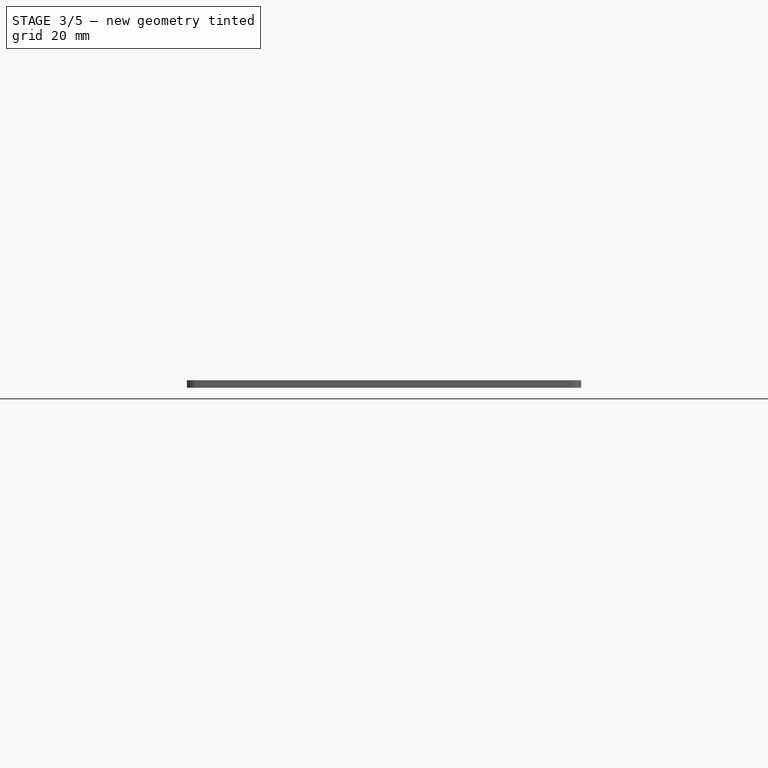
[diagram: stage 3 of 5 — front view after this stage's code; geometry added in this stage tinted green]
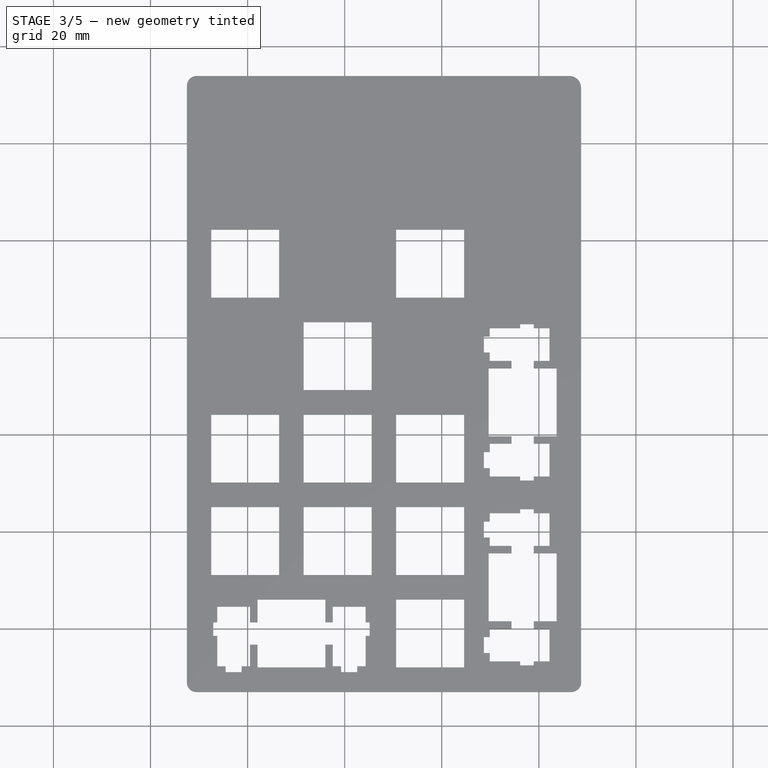
[diagram: stage 3 of 5 — top view after this stage's code; geometry added in this stage tinted green]
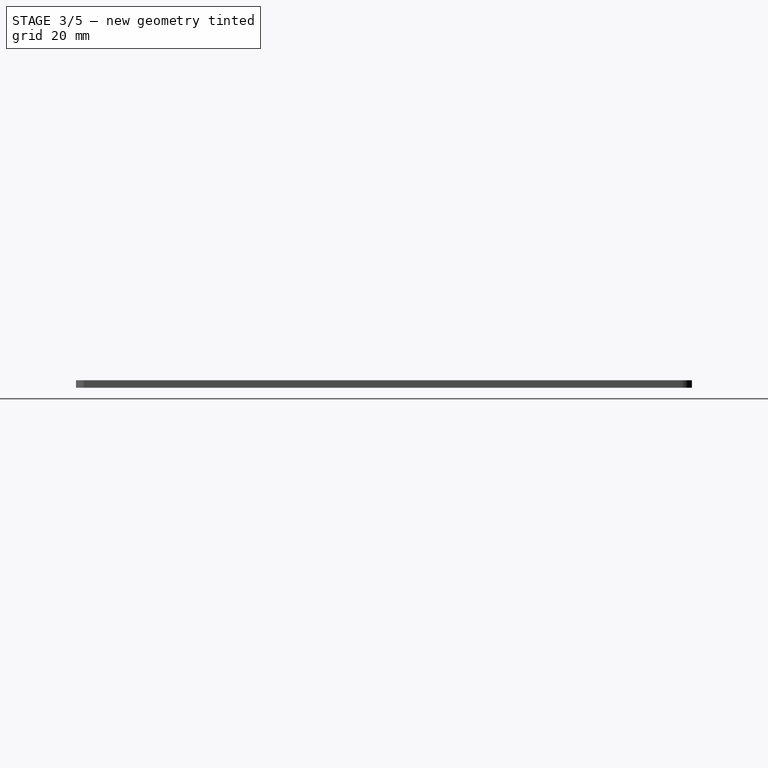
[diagram: stage 3 of 5 — right view after this stage's code; geometry added in this stage tinted green]
FEATURE [PartDesign::Pocket] Pocket008
  BaseFeature = -> Pocket007
  Length = 5
  Length2 = 100
  Profile = -> Sketch003
  Reversed = true
  Type = 0
FEATURE [PartDesign::Pocket] Pocket009
  BaseFeature = -> Pocket008
  Length = 5
  Length2 = 100
  Profile = -> Sketch004
  Reversed = true
  Type = 0
FEATURE [PartDesign::Pocket] Pocket010
  BaseFeature = -> Pocket009
  Length = 5
  Length2 = 100
  Profile = -> Sketch005
  Reversed = true
  Type = 0
FEATURE [PartDesign::Pocket] Pocket011
  BaseFeature = -> Pocket010
  Length = 5
  Length2 = 100
  Profile = -> Sketch006
  Reversed = true
  Type = 0
FEATURE [PartDesign::Pocket] Pocket012
  BaseFeature = -> Pocket011
  Length = 5
  Length2 = 100
  Profile = -> Sketch007
  Reversed = true
  Type = 0
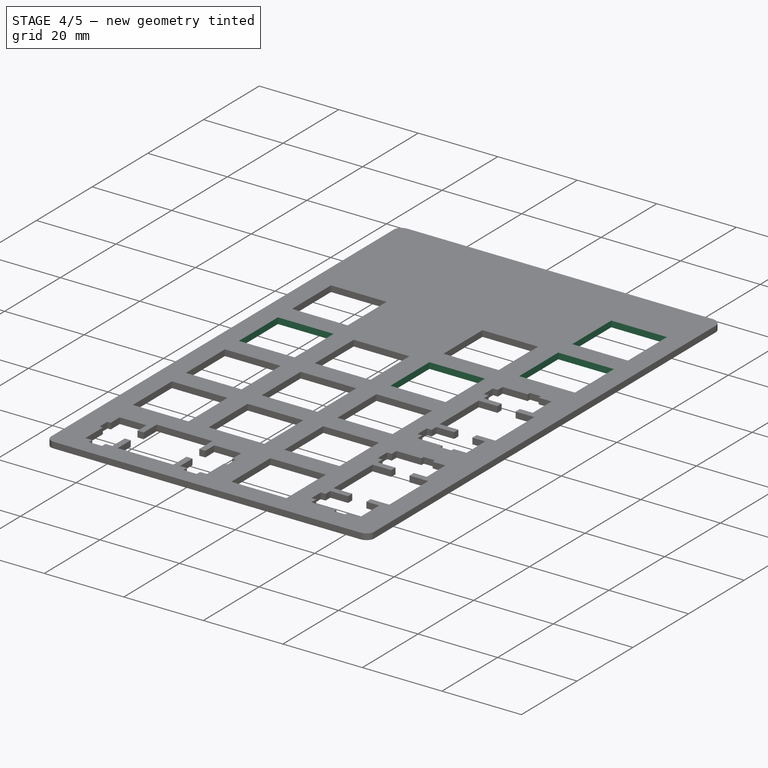
[diagram: stage 4 of 5 — iso view after this stage's code; geometry added in this stage tinted green]
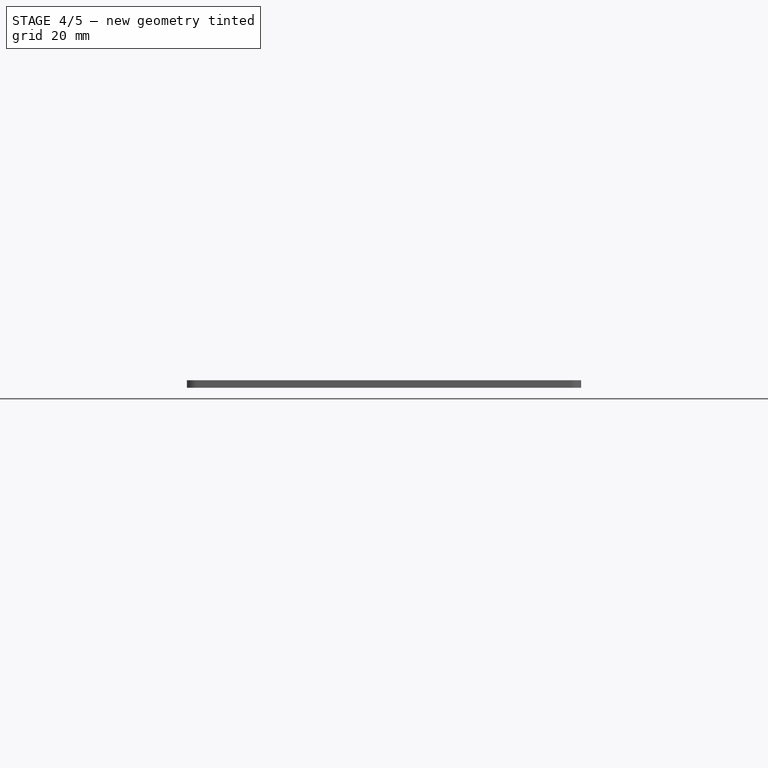
[diagram: stage 4 of 5 — front view after this stage's code; geometry added in this stage tinted green]
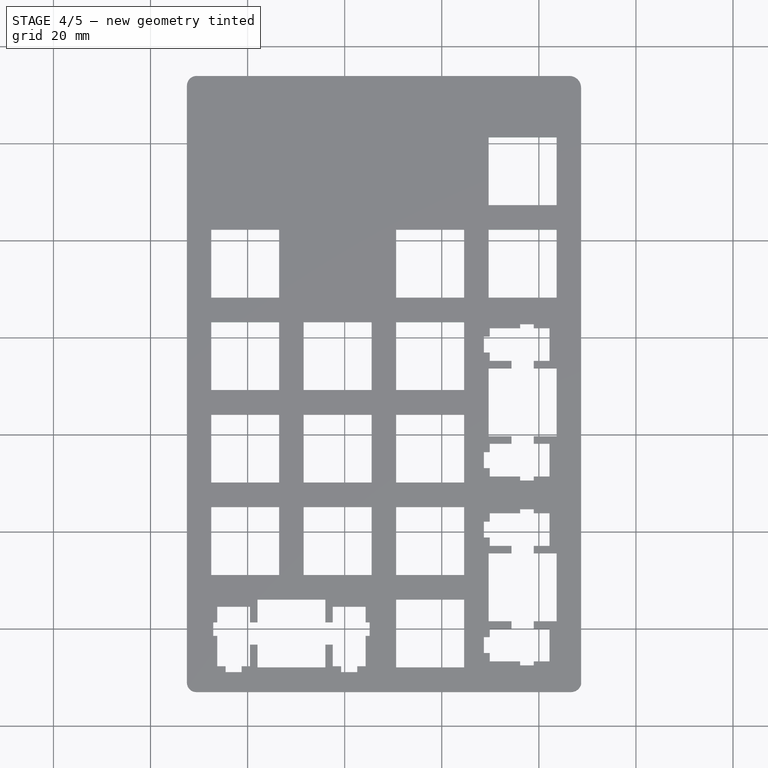
[diagram: stage 4 of 5 — top view after this stage's code; geometry added in this stage tinted green]
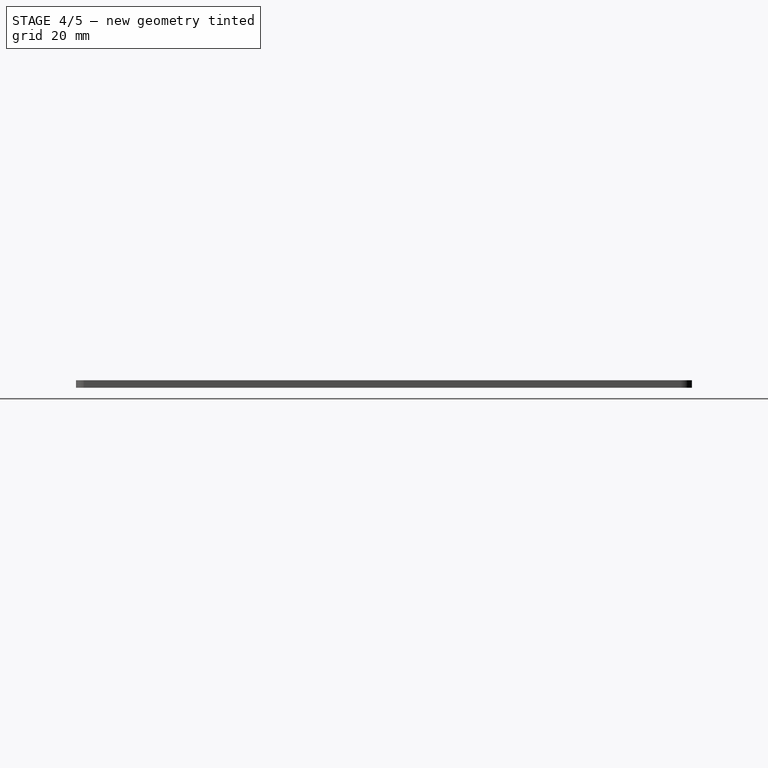
[diagram: stage 4 of 5 — right view after this stage's code; geometry added in this stage tinted green]
FEATURE [PartDesign::Pocket] Pocket013
  BaseFeature = -> Pocket012
  Length = 5
  Length2 = 100
  Profile = -> Sketch014
  Reversed = true
  Type = 0
FEATURE [PartDesign::Pocket] Pocket014
  BaseFeature = -> Pocket013
  Length = 5
  Length2 = 100
  Profile = -> Sketch013
  Reversed = true
  Type = 0
FEATURE [PartDesign::Pocket] Pocket015
  BaseFeature = -> Pocket014
  Length = 5
  Length2 = 100
  Profile = -> Sketch012
  Reversed = true
  Type = 0
FEATURE [PartDesign::Pocket] Pocket016
  BaseFeature = -> Pocket015
  Length = 5
  Length2 = 100
  Profile = -> Sketch011
  Reversed = true
  Type = 0
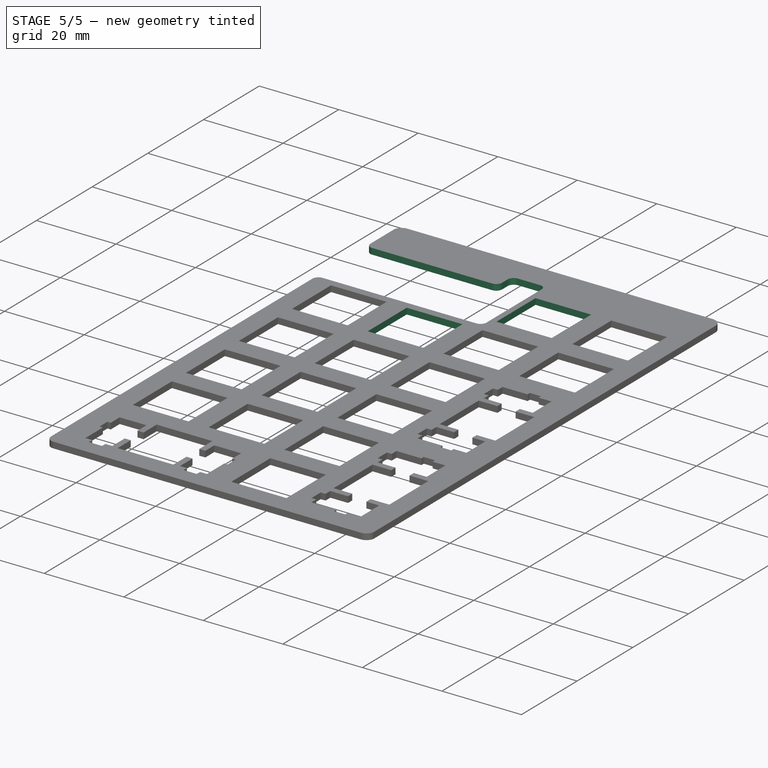
[diagram: stage 5 of 5 — iso view after this stage's code; geometry added in this stage tinted green]
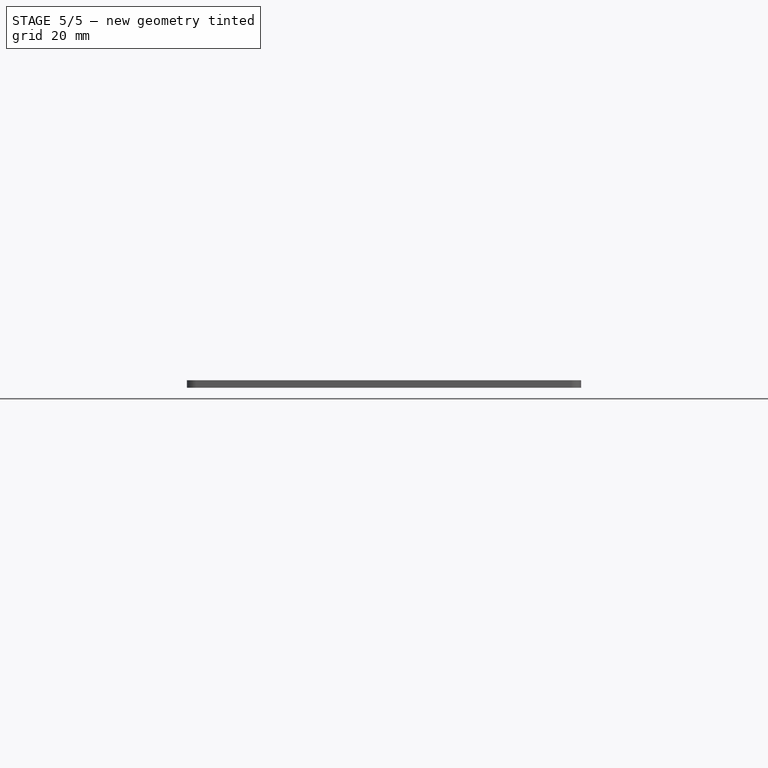
[diagram: stage 5 of 5 — front view after this stage's code; geometry added in this stage tinted green]
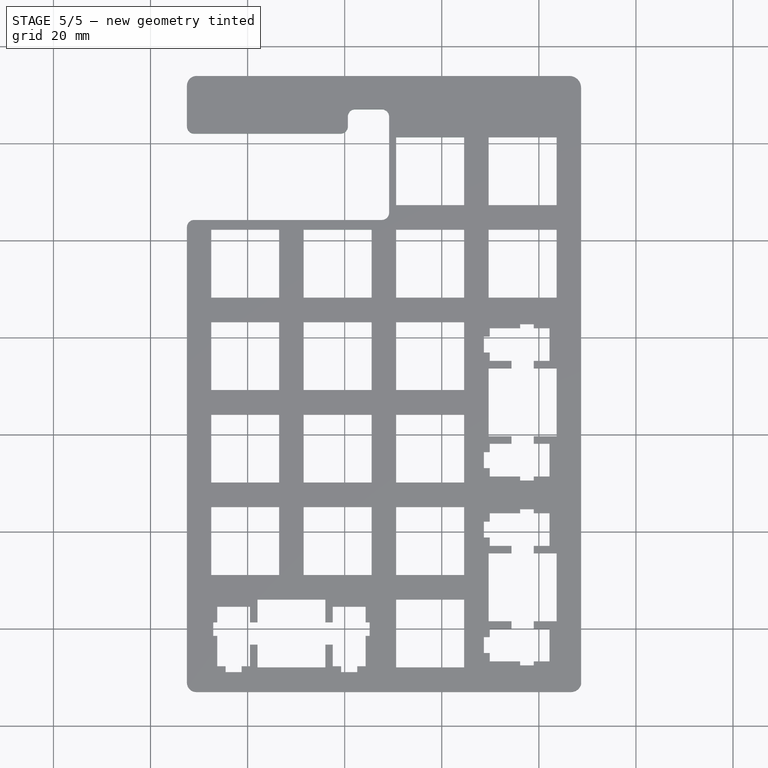
[diagram: stage 5 of 5 — top view after this stage's code; geometry added in this stage tinted green]
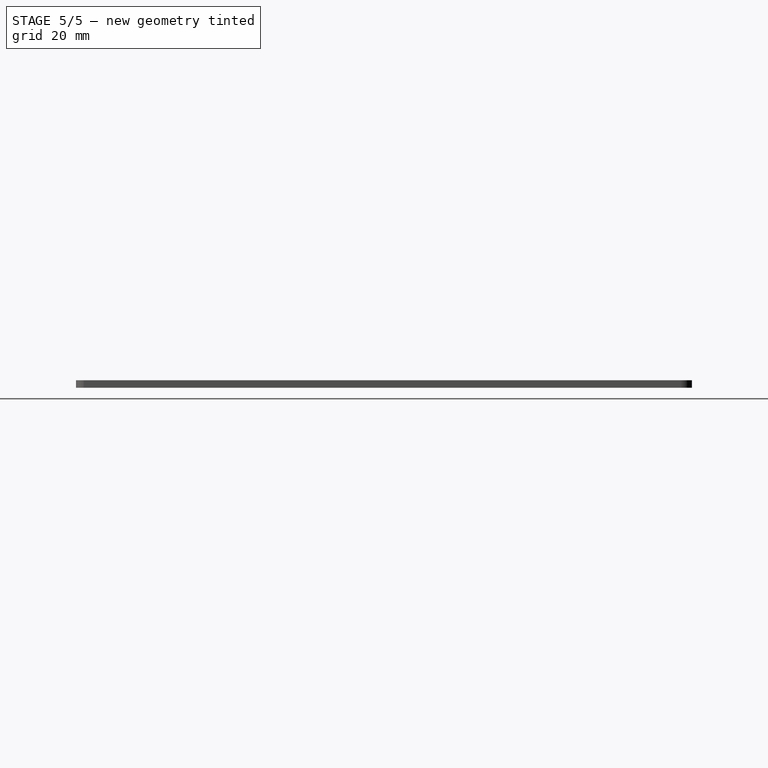
[diagram: stage 5 of 5 — right view after this stage's code; geometry added in this stage tinted green]
FEATURE [PartDesign::Pocket] Pocket017
  BaseFeature = -> Pocket016
  Length = 5
  Length2 = 100
  Profile = -> Sketch010
  Reversed = true
  Type = 0
FEATURE [Sketcher::SketchObject] CopySketch
  sketch-geometry (4):
    g0: LineSegment StartX=64.5996 StartY=121.3 StartZ=0 EndX=64.5996 EndY=107.3 EndZ=0
    g1: LineSegment StartX=64.5996 StartY=107.3 StartZ=0 EndX=50.6003 EndY=107.3 EndZ=0
    g2: LineSegment StartX=50.6003 StartY=107.3 StartZ=0 EndX=50.6003 EndY=121.3 EndZ=0
    g3: LineSegment StartX=50.6003 StartY=121.3 StartZ=0 EndX=64.5996 EndY=121.3 EndZ=0
  constraints (8):
    c: Vertical(g0)
    c: Coincident(g0,g1)
    c: Horizontal(g1)
    c: Coincident(g1,g2)
    c: Vertical(g2)
    c: Coincident(g2,g3)
    c: Horizontal(g3)
    c: Coincident(g3,g0)
FEATURE [Sketcher::SketchObject] Sketch
  sketch-geometry (4):
    g0: LineSegment StartX=64.5996 StartY=121.3 StartZ=0 EndX=64.5996 EndY=107.3 EndZ=0
    g1: LineSegment StartX=64.5996 StartY=107.3 StartZ=0 EndX=50.6003 EndY=107.3 EndZ=0
    g2: LineSegment StartX=50.6003 StartY=107.3 StartZ=0 EndX=50.6003 EndY=121.3 EndZ=0
    g3: LineSegment StartX=50.6003 StartY=121.3 StartZ=0 EndX=64.5996 EndY=121.3 EndZ=0
  constraints (8):
    c: Vertical(g0)
    c: Coincident(g0,g1)
    c: Horizontal(g1)
    c: Coincident(g1,g2)
    c: Vertical(g2)
    c: Coincident(g2,g3)
    c: Horizontal(g3)
    c: Coincident(g3,g0)
FEATURE [PartDesign::Pocket] Pocket019
  BaseFeature = -> Pocket017
  Length = 5
  Length2 = 100
  Profile = -> CopySketch
  Reversed = true
  Type = 0
FEATURE [PartDesign::Pocket] Pocket020
  BaseFeature = -> Pocket019
  Length = 5
  Length2 = 100
  Profile = -> Sketch009
  Reversed = true
  Type = 0
FEATURE [Sketcher::SketchObject] Sketch021
  MapMode = 5
  Placement = pos=(0,0,1.524) rot=(0,0,1;0rad)
  Support = -> [Pocket020]
FEATURE [Sketcher::SketchObject] Sketch022  label="arduino001"
  sketch-geometry (9):
    g0: GeomPoint X=5.74275 Y=122.036 Z=0
    g1: LineSegment [constr] StartX=5.73795 StartY=122.037 StartZ=0 EndX=49.1508 EndY=122.037 EndZ=0
    g2: LineSegment [constr] StartX=49.1508 StartY=122.037 StartZ=0 EndX=49.1508 EndY=104.25 EndZ=0
    g3: LineSegment [constr] StartX=49.1508 StartY=104.25 StartZ=0 EndX=5.73795 EndY=104.25 EndZ=0
    g4: LineSegment [constr] StartX=5.73795 StartY=104.25 StartZ=0 EndX=5.73795 EndY=122.037 EndZ=0
    g5: LineSegment StartX=49.1508 StartY=122.037 StartZ=0 EndX=40.6508 EndY=122.037 EndZ=0
    g6: LineSegment StartX=40.6508 StartY=122.037 StartZ=0 EndX=40.6508 EndY=127.037 EndZ=0
    g7: LineSegment StartX=40.6508 StartY=127.037 StartZ=0 EndX=49.1508 EndY=127.037 EndZ=0
    g8: LineSegment StartX=49.1508 StartY=127.037 StartZ=0 EndX=49.1508 EndY=122.037 EndZ=0
  constraints (21):
    c: Coincident(g1,g2)
    c: Coincident(g2,g3)
    c: Coincident(g3,g4)
    c: Coincident(g4,g1)
    c: Horizontal(g1)
    c: Horizontal(g3)
    c: Vertical(g2)
    c: Vertical(g4)
    c: Coincident(g5,g6)
    c: Coincident(g6,g7)
    c: Coincident(g7,g8)
    c: Coincident(g8,g5)
    c: Horizontal(g5)
    c: Horizontal(g7)
    c: Vertical(g6)
    c: Vertical(g8)
    c: Distance(g7) = 8.5
    c: Distance(g6) = 5
    c: DistanceX(g1) = 49.1508
    c: DistanceY(g1) = 122.037
    c: Coincident(g1,g5)
FEATURE [Sketcher::SketchObject] CopySketch022
  sketch-geometry (9):
    g0: GeomPoint X=5.74275 Y=122.036 Z=0
    g1: LineSegment [constr] StartX=5.73795 StartY=122.037 StartZ=0 EndX=49.1508 EndY=122.037 EndZ=0
    g2: LineSegment [constr] StartX=49.1508 StartY=122.037 StartZ=0 EndX=49.1508 EndY=104.25 EndZ=0
    g3: LineSegment [constr] StartX=49.1508 StartY=104.25 StartZ=0 EndX=5.73795 EndY=104.25 EndZ=0
    g4: LineSegment [constr] StartX=5.73795 StartY=104.25 StartZ=0 EndX=5.73795 EndY=122.037 EndZ=0
    g5: LineSegment StartX=49.1508 StartY=122.037 StartZ=0 EndX=40.6508 EndY=122.037 EndZ=0
    g6: LineSegment StartX=40.6508 StartY=122.037 StartZ=0 EndX=40.6508 EndY=127.037 EndZ=0
    g7: LineSegment StartX=40.6508 StartY=127.037 StartZ=0 EndX=49.1508 EndY=127.037 EndZ=0
    g8: LineSegment StartX=49.1508 StartY=127.037 StartZ=0 EndX=49.1508 EndY=122.037 EndZ=0
  constraints (21):
    c: Coincident(g1,g2)
    c: Coincident(g2,g3)
    c: Coincident(g3,g4)
    c: Coincident(g4,g1)
    c: Horizontal(g1)
    c: Horizontal(g3)
    c: Vertical(g2)
    c: Vertical(g4)
    c: Coincident(g5,g6)
    c: Coincident(g6,g7)
    c: Coincident(g7,g8)
    c: Coincident(g8,g5)
    c: Horizontal(g5)
    c: Horizontal(g7)
    c: Vertical(g6)
    c: Vertical(g8)
    c: Distance(g7) = 8.5
    c: Distance(g6) = 5
    c: DistanceX(g1) = 49.1508
    c: DistanceY(g1) = 122.037
    c: Coincident(g1,g5)
FEATURE [PartDesign::Pocket] Pocket021
  BaseFeature = -> Pocket020
  Length = 5
  Length2 = 100
  Profile = -> CopySketch022
  Reversed = true
  Type = 0
FEATURE [PartDesign::Fillet] Fillet
  Base = -> Pocket021 [Edge384,Edge383,Edge382,Edge385,Edge7,Edge379]
  BaseFeature = -> Pocket021
  Radius = 1.5
FEATURE [PartDesign::Body] Body
  Group = -> [Sketch008,Pad,Sketch001,Sketch002,Sketch003,Sketch004,Sketch005,Sketch006,Sketch007,Sketch009,Sketch010,Sketch011,Sketch012,Sketch013,Sketch014,Sketch015,Sketch016,Sketch017,Sketch018,Sketch019,Sketch020,Pocket,Pocket001,Pocket002,Pocket003,Pocket004,Pocket005,Pocket006,Pocket007,Pocket008,Pocket009,Pocket010,Pocket011,Pocket012,Pocket013,Pocket014,Pocket015,Pocket016,Pocket017,Pocket019,+4 more]
  Origin = -> Origin001
  Tip = -> Fillet
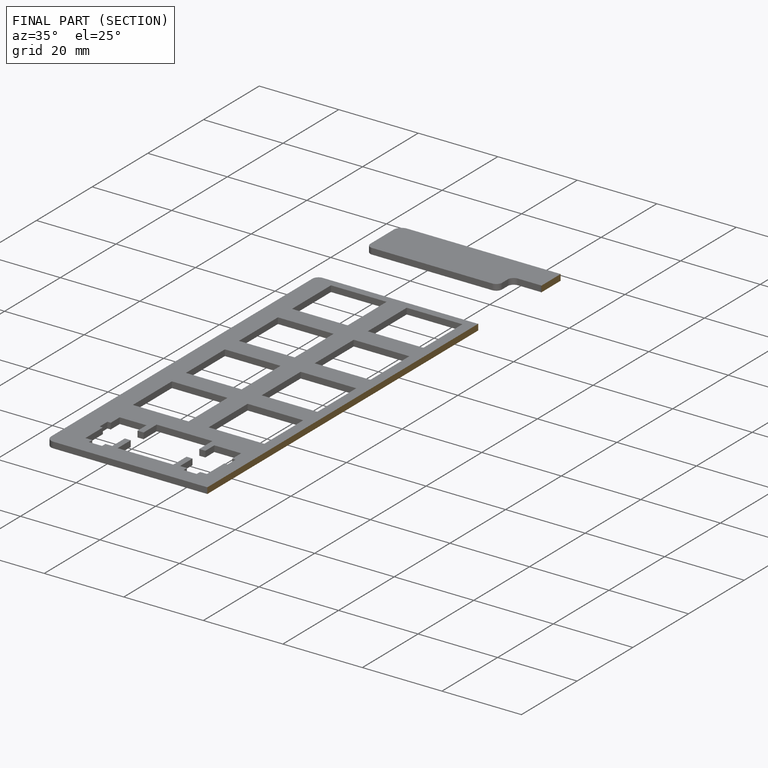
[diagram: finished part — half-section view (interior)]
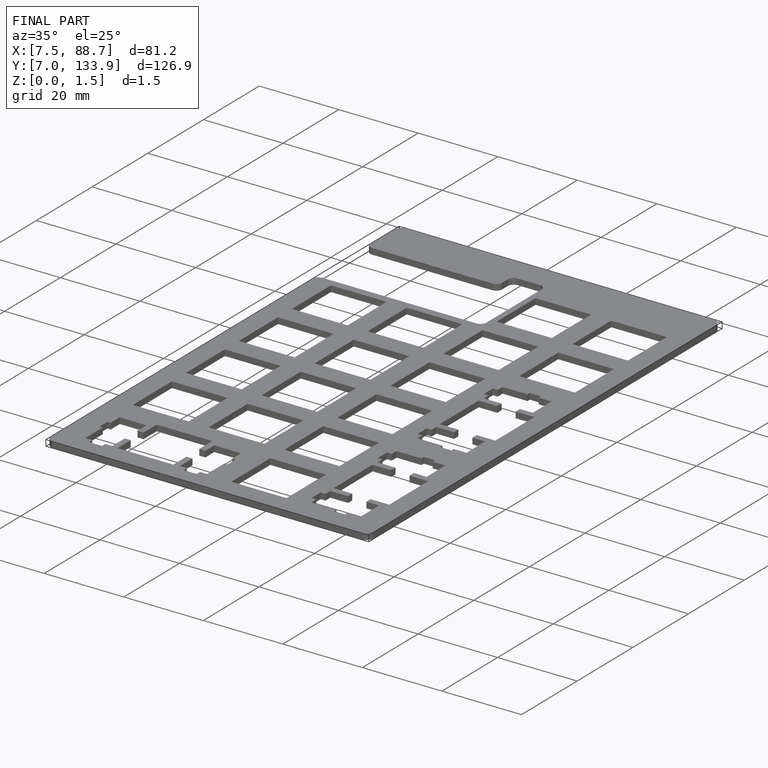
[diagram: finished part — iso view with bounding-box wireframe]
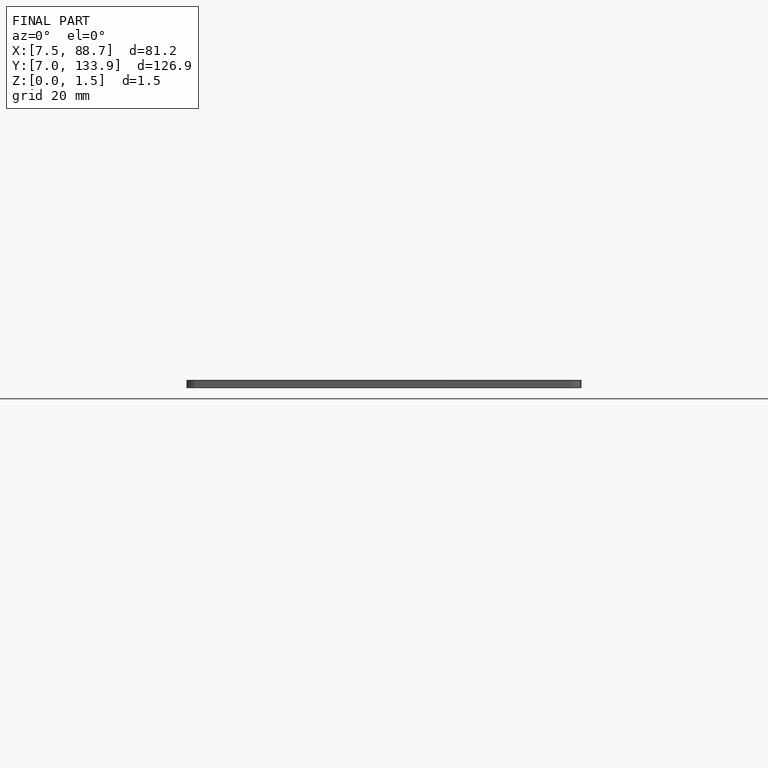
[diagram: finished part — front view with bounding-box wireframe]
